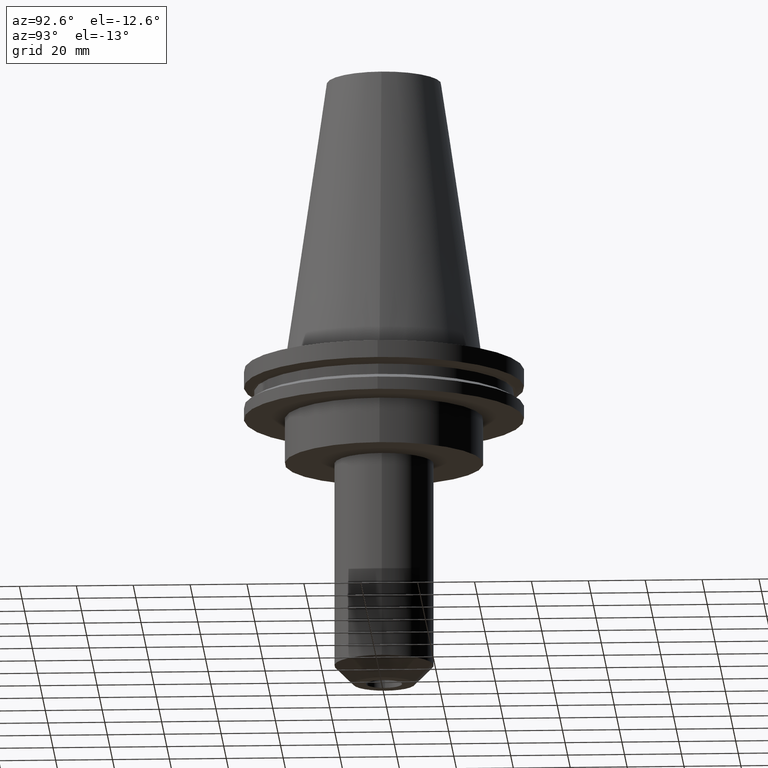
[diagram: clean part render]
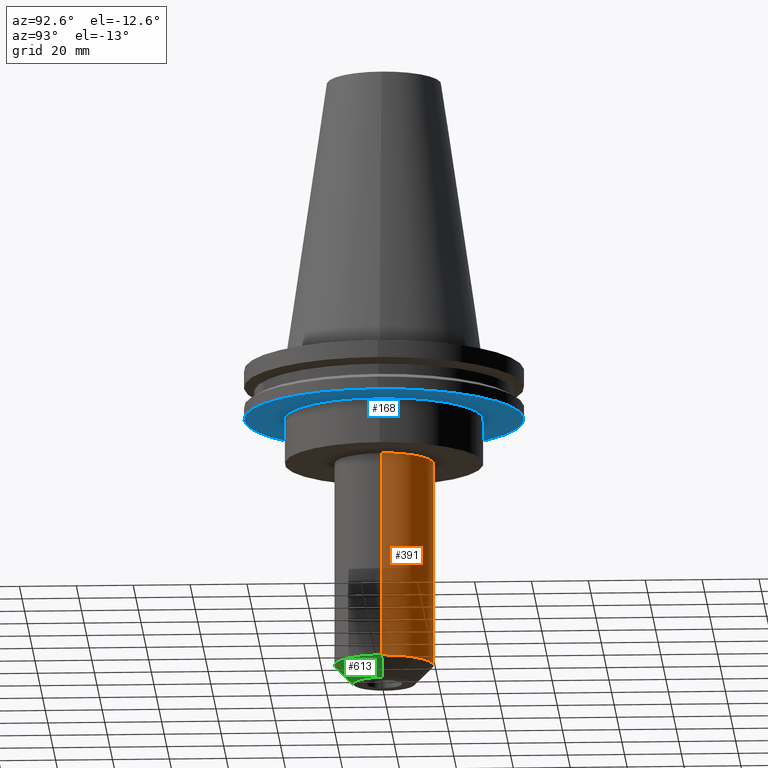
[diagram: same view with three faces highlighted in distinct colors, each labeled with its STEP entity id]
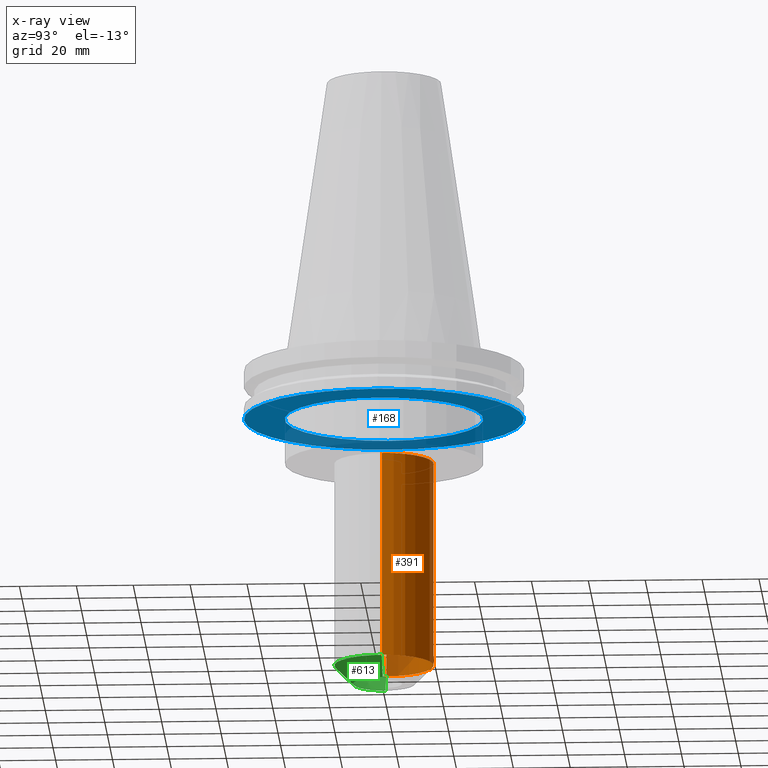
[diagram: x-ray of the same camera — body ghosted, the three highlighted faces saturated]
A machine part, auxiliary view with three faces highlighted in distinct colors.
The next image is the same camera in x-ray (body ghosted, the three faces saturated) — at least one of them is partly hidden behind the body in this view.
Their STEP definitions:

[orange] entity #391 — the highlighted cylindrical surface (partial cylindrical patch) has radius 17.45 mm, axis along (-0, -0, 1).
#5 = DIRECTION ( 'NONE',  ( -0.000000000000000000, -0.000000000000000000, 1.000000000000000000 ) ) ;
#13 = EDGE_CURVE ( 'NONE', #65, #807, #760, .T. ) ;
#65 = VERTEX_POINT ( 'NONE', #692 ) ;
#84 = CARTESIAN_POINT ( 'NONE',  ( -17.44999999999999218, 2.137008664512130386E-15, -107.7000000000000028 ) ) ;
#164 = VECTOR ( 'NONE', #610, 1000.000000000000000 ) ;
#207 = VECTOR ( 'NONE', #5, 1000.000000000000000 ) ;
#267 = ORIENTED_EDGE ( 'NONE', *, *, #593, .T. ) ;
#322 = ORIENTED_EDGE ( 'NONE', *, *, #13, .T. ) ;
#335 = VERTEX_POINT ( 'NONE', #84 ) ;
#353 = DIRECTION ( 'NONE',  ( 0.000000000000000000, 0.000000000000000000, -1.000000000000000000 ) ) ;
#364 = VERTEX_POINT ( 'NONE', #596 ) ;
#391 = ADVANCED_FACE ( 'NONE', ( #844 ), #757, .T. ) ;
#393 = AXIS2_PLACEMENT_3D ( 'NONE', #771, #353, #626 ) ;
#395 = CARTESIAN_POINT ( 'NONE',  ( 0.000000000000000000, 0.000000000000000000, -107.7000000000000028 ) ) ;
#419 = ORIENTED_EDGE ( 'NONE', *, *, #810, .F. ) ;
#420 = CARTESIAN_POINT ( 'NONE',  ( 17.44999999999998863, 0.000000000000000000, 0.000000000000000000 ) ) ;
#440 = DIRECTION ( 'NONE',  ( -0.000000000000000000, -0.000000000000000000, 1.000000000000000000 ) ) ;
#521 = AXIS2_PLACEMENT_3D ( 'NONE', #612, #440, #639 ) ;
#554 = LINE ( 'NONE', #420, #164 ) ;
#593 = EDGE_CURVE ( 'NONE', #335, #65, #785, .T. ) ;
#596 = CARTESIAN_POINT ( 'NONE',  ( 17.44999999999999218, 0.000000000000000000, -107.7000000000000028 ) ) ;
#598 = DIRECTION ( 'NONE',  ( -0.000000000000000000, -0.000000000000000000, 1.000000000000000000 ) ) ;
#606 = EDGE_LOOP ( 'NONE', ( #631, #267, #322, #419 ) ) ;
#610 = DIRECTION ( 'NONE',  ( -0.000000000000000000, -0.000000000000000000, 1.000000000000000000 ) ) ;
#612 = CARTESIAN_POINT ( 'NONE',  ( 0.000000000000000000, 0.000000000000000000, 0.000000000000000000 ) ) ;
#618 = AXIS2_PLACEMENT_3D ( 'NONE', #395, #598, #782 ) ;
#626 = DIRECTION ( 'NONE',  ( 1.000000000000000000, 0.000000000000000000, 0.000000000000000000 ) ) ;
#631 = ORIENTED_EDGE ( 'NONE', *, *, #663, .T. ) ;
#639 = DIRECTION ( 'NONE',  ( 1.000000000000000000, 0.000000000000000000, 0.000000000000000000 ) ) ;
#663 = EDGE_CURVE ( 'NONE', #364, #335, #674, .T. ) ;
#674 = CIRCLE ( 'NONE', #618, 17.44999999999999218 ) ;
#692 = CARTESIAN_POINT ( 'NONE',  ( -17.44999999999998863, 2.137008664512129992E-15, -35.04999999999999716 ) ) ;
#729 = CARTESIAN_POINT ( 'NONE',  ( -17.44999999999998863, 2.137008664512129992E-15, 0.000000000000000000 ) ) ;
#757 = CYLINDRICAL_SURFACE ( 'NONE', #521, 17.44999999999998863 ) ;
#760 = CIRCLE ( 'NONE', #393, 17.44999999999998863 ) ;
#771 = CARTESIAN_POINT ( 'NONE',  ( 0.000000000000000000, 0.000000000000000000, -35.04999999999999716 ) ) ;
#782 = DIRECTION ( 'NONE',  ( 1.000000000000000000, 0.000000000000000000, 0.000000000000000000 ) ) ;
#785 = LINE ( 'NONE', #729, #207 ) ;
#807 = VERTEX_POINT ( 'NONE', #808 ) ;
#808 = CARTESIAN_POINT ( 'NONE',  ( 17.44999999999998863, 0.000000000000000000, -35.04999999999999716 ) ) ;
#810 = EDGE_CURVE ( 'NONE', #364, #807, #554, .T. ) ;
#844 = FACE_OUTER_BOUND ( 'NONE', #606, .T. ) ;

[blue] entity #168 — the highlighted planar face has unit normal (0, -0, 1).
#14 = CARTESIAN_POINT ( 'NONE',  ( 0.000000000000000000, 0.000000000000000000, -19.04999999999999716 ) ) ;
#29 = AXIS2_PLACEMENT_3D ( 'NONE', #661, #265, #735 ) ;
#32 = DIRECTION ( 'NONE',  ( 1.000000000000000000, 0.000000000000000000, 0.000000000000000000 ) ) ;
#37 = ORIENTED_EDGE ( 'NONE', *, *, #630, .T. ) ;
#48 = CARTESIAN_POINT ( 'NONE',  ( 0.000000000000000000, 0.000000000000000000, -19.04999999999999716 ) ) ;
#66 = DIRECTION ( 'NONE',  ( 1.000000000000000000, 0.000000000000000000, 0.000000000000000000 ) ) ;
#70 = DIRECTION ( 'NONE',  ( -0.000000000000000000, -0.000000000000000000, 1.000000000000000000 ) ) ;
#131 = FACE_BOUND ( 'NONE', #511, .T. ) ;
#168 = ADVANCED_FACE ( 'NONE', ( #577, #131 ), #244, .F. ) ;
#180 = CIRCLE ( 'NONE', #289, 49.21499999999998920 ) ;
#200 = CARTESIAN_POINT ( 'NONE',  ( 0.000000000000000000, 49.21499999999998920, -19.04999999999999716 ) ) ;
#233 = AXIS2_PLACEMENT_3D ( 'NONE', #595, #70, #66 ) ;
#244 = PLANE ( 'NONE',  #312 ) ;
#265 = DIRECTION ( 'NONE',  ( -0.000000000000000000, -0.000000000000000000, 1.000000000000000000 ) ) ;
#271 = DIRECTION ( 'NONE',  ( -0.000000000000000000, -0.000000000000000000, 1.000000000000000000 ) ) ;
#289 = AXIS2_PLACEMENT_3D ( 'NONE', #14, #271, #407 ) ;
#306 = EDGE_LOOP ( 'NONE', ( #716, #414 ) ) ;
#312 = AXIS2_PLACEMENT_3D ( 'NONE', #200, #584, #715 ) ;
#323 = CARTESIAN_POINT ( 'NONE',  ( 34.92499999999999716, 0.000000000000000000, -19.04999999999999716 ) ) ;
#328 = AXIS2_PLACEMENT_3D ( 'NONE', #48, #708, #32 ) ;
#334 = CARTESIAN_POINT ( 'NONE',  ( -49.21499999999998920, 6.027099222003697037E-15, -19.04999999999999716 ) ) ;
#346 = VERTEX_POINT ( 'NONE', #334 ) ;
#394 = ORIENTED_EDGE ( 'NONE', *, *, #444, .T. ) ;
#407 = DIRECTION ( 'NONE',  ( 1.000000000000000000, 0.000000000000000000, 0.000000000000000000 ) ) ;
#414 = ORIENTED_EDGE ( 'NONE', *, *, #583, .F. ) ;
#444 = EDGE_CURVE ( 'NONE', #609, #496, #701, .T. ) ;
#473 = CARTESIAN_POINT ( 'NONE',  ( 49.21499999999998920, 0.000000000000000000, -19.04999999999999716 ) ) ;
#496 = VERTEX_POINT ( 'NONE', #633 ) ;
#511 = EDGE_LOOP ( 'NONE', ( #394, #37 ) ) ;
#577 = FACE_OUTER_BOUND ( 'NONE', #306, .T. ) ;
#583 = EDGE_CURVE ( 'NONE', #346, #768, #832, .T. ) ;
#584 = DIRECTION ( 'NONE',  ( 0.000000000000000000, -0.000000000000000000, 1.000000000000000000 ) ) ;
#595 = CARTESIAN_POINT ( 'NONE',  ( 0.000000000000000000, 0.000000000000000000, -19.04999999999999716 ) ) ;
#609 = VERTEX_POINT ( 'NONE', #323 ) ;
#630 = EDGE_CURVE ( 'NONE', #496, #609, #643, .T. ) ;
#633 = CARTESIAN_POINT ( 'NONE',  ( -34.92499999999999716, 4.277078946022130887E-15, -19.04999999999999716 ) ) ;
#643 = CIRCLE ( 'NONE', #29, 34.92499999999999716 ) ;
#661 = CARTESIAN_POINT ( 'NONE',  ( 0.000000000000000000, 0.000000000000000000, -19.04999999999999716 ) ) ;
#701 = CIRCLE ( 'NONE', #328, 34.92499999999999716 ) ;
#708 = DIRECTION ( 'NONE',  ( -0.000000000000000000, -0.000000000000000000, 1.000000000000000000 ) ) ;
#714 = EDGE_CURVE ( 'NONE', #768, #346, #180, .T. ) ;
#715 = DIRECTION ( 'NONE',  ( 1.000000000000000000, 0.000000000000000000, 0.000000000000000000 ) ) ;
#716 = ORIENTED_EDGE ( 'NONE', *, *, #714, .F. ) ;
#735 = DIRECTION ( 'NONE',  ( 1.000000000000000000, 0.000000000000000000, 0.000000000000000000 ) ) ;
#768 = VERTEX_POINT ( 'NONE', #473 ) ;
#832 = CIRCLE ( 'NONE', #233, 49.21499999999998920 ) ;

[green] entity #613 — the highlighted conical surface has half-angle 45 deg.
#17 = ORIENTED_EDGE ( 'NONE', *, *, #198, .F. ) ;
#18 = DIRECTION ( 'NONE',  ( 0.7071067811865481278, 0.000000000000000000, 0.7071067811865470176 ) ) ;
#26 = LINE ( 'NONE', #290, #71 ) ;
#31 = LINE ( 'NONE', #90, #442 ) ;
#69 = VERTEX_POINT ( 'NONE', #225 ) ;
#71 = VECTOR ( 'NONE', #552, 1000.000000000000000 ) ;
#72 = DIRECTION ( 'NONE',  ( -0.000000000000000000, -0.000000000000000000, 1.000000000000000000 ) ) ;
#84 = CARTESIAN_POINT ( 'NONE',  ( -17.44999999999999218, 2.137008664512130386E-15, -107.7000000000000028 ) ) ;
#90 = CARTESIAN_POINT ( 'NONE',  ( 10.84999999999998899, 0.000000000000000000, -114.2999999999999972 ) ) ;
#198 = EDGE_CURVE ( 'NONE', #335, #364, #533, .T. ) ;
#199 = DIRECTION ( 'NONE',  ( 1.000000000000000000, 0.000000000000000000, 0.000000000000000000 ) ) ;
#225 = CARTESIAN_POINT ( 'NONE',  ( -10.84999999999998899, 1.732875220793503490E-15, -114.2999999999999972 ) ) ;
#230 = EDGE_LOOP ( 'NONE', ( #451, #686, #363, #17 ) ) ;
#290 = CARTESIAN_POINT ( 'NONE',  ( -10.84999999999998899, 1.328741777074876791E-15, -114.2999999999999972 ) ) ;
#314 = CIRCLE ( 'NONE', #481, 10.84999999999998899 ) ;
#318 = DIRECTION ( 'NONE',  ( 1.000000000000000000, 0.000000000000000000, 0.000000000000000000 ) ) ;
#324 = EDGE_CURVE ( 'NONE', #69, #559, #314, .T. ) ;
#331 = DIRECTION ( 'NONE',  ( 1.000000000000000000, 0.000000000000000000, 0.000000000000000000 ) ) ;
#335 = VERTEX_POINT ( 'NONE', #84 ) ;
#363 = ORIENTED_EDGE ( 'NONE', *, *, #795, .T. ) ;
#364 = VERTEX_POINT ( 'NONE', #596 ) ;
#380 = FACE_OUTER_BOUND ( 'NONE', #230, .T. ) ;
#421 = AXIS2_PLACEMENT_3D ( 'NONE', #644, #710, #318 ) ;
#442 = VECTOR ( 'NONE', #18, 1000.000000000000000 ) ;
#451 = ORIENTED_EDGE ( 'NONE', *, *, #548, .F. ) ;
#481 = AXIS2_PLACEMENT_3D ( 'NONE', #545, #72, #331 ) ;
#533 = CIRCLE ( 'NONE', #421, 17.44999999999999218 ) ;
#545 = CARTESIAN_POINT ( 'NONE',  ( 0.000000000000000000, 0.000000000000000000, -114.2999999999999972 ) ) ;
#548 = EDGE_CURVE ( 'NONE', #69, #335, #26, .T. ) ;
#552 = DIRECTION ( 'NONE',  ( -0.7071067811865481278, 8.659560562354940254E-17, 0.7071067811865470176 ) ) ;
#559 = VERTEX_POINT ( 'NONE', #591 ) ;
#591 = CARTESIAN_POINT ( 'NONE',  ( 10.84999999999998899, 0.000000000000000000, -114.2999999999999972 ) ) ;
#596 = CARTESIAN_POINT ( 'NONE',  ( 17.44999999999999218, 0.000000000000000000, -107.7000000000000028 ) ) ;
#613 = ADVANCED_FACE ( 'NONE', ( #380 ), #691, .T. ) ;
#644 = CARTESIAN_POINT ( 'NONE',  ( 0.000000000000000000, 0.000000000000000000, -107.7000000000000028 ) ) ;
#659 = AXIS2_PLACEMENT_3D ( 'NONE', #726, #799, #199 ) ;
#686 = ORIENTED_EDGE ( 'NONE', *, *, #324, .T. ) ;
#691 = CONICAL_SURFACE ( 'NONE', #659, 10.84999999999998899, 0.7853981633974490562 ) ;
#710 = DIRECTION ( 'NONE',  ( -0.000000000000000000, -0.000000000000000000, 1.000000000000000000 ) ) ;
#726 = CARTESIAN_POINT ( 'NONE',  ( 0.000000000000000000, 0.000000000000000000, -114.2999999999999972 ) ) ;
#795 = EDGE_CURVE ( 'NONE', #559, #364, #31, .T. ) ;
#799 = DIRECTION ( 'NONE',  ( -0.000000000000000000, -0.000000000000000000, 1.000000000000000000 ) ) ;